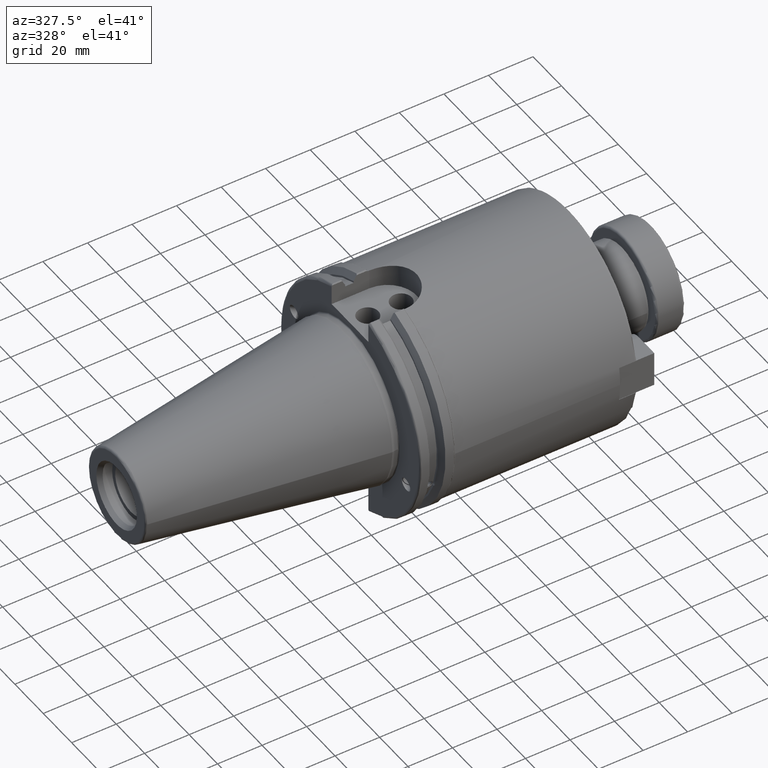
[diagram: clean part render]
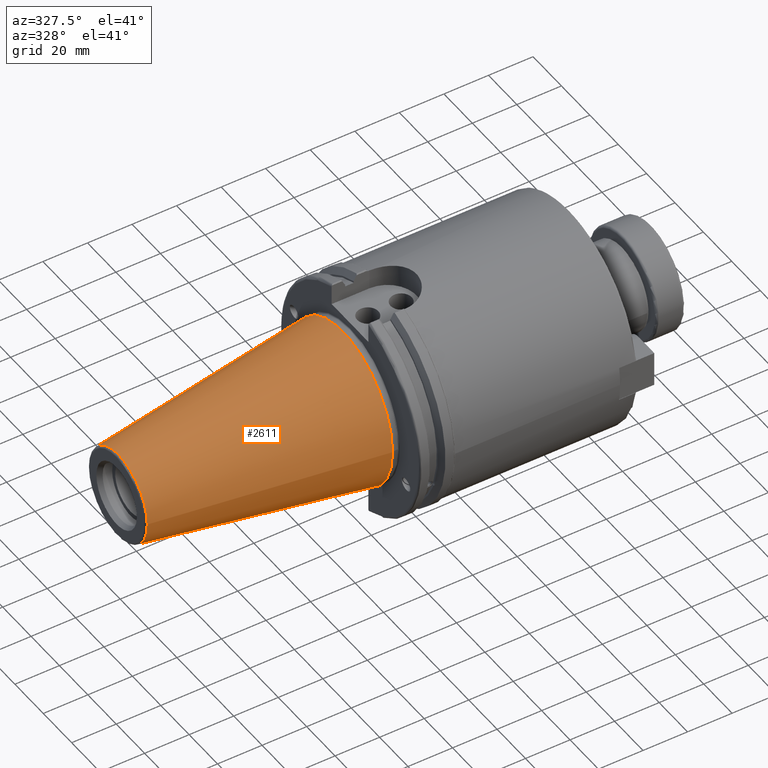
[diagram: same view with one face highlighted and labeled with its STEP entity id]
A machine part, auxiliary view. The second image highlights one B-rep face of the part: STEP entity #2611.
In plain terms, the highlighted conical surface has half-angle 8.297 deg.
Its self-contained STEP definition (entity closure, byte-faithful):
#129=CONICAL_SURFACE('',#2952,27.5166666666666,0.14481249823894);
#275=CIRCLE('',#2943,20.233121911427);
#276=CIRCLE('',#2944,20.233121911427);
#280=CIRCLE('',#2948,20.233121911427);
#283=CIRCLE('',#2953,34.925);
#284=CIRCLE('',#2954,34.925);
#425=FACE_OUTER_BOUND('',#583,.T.);
#583=EDGE_LOOP('',(#2164,#2165,#2166,#2167,#2168,#2169,#2170));
#747=LINE('',#5028,#897);
#897=VECTOR('',#3587,27.5166666666666);
#1199=VERTEX_POINT('',#5007);
#1200=VERTEX_POINT('',#5008);
#1201=VERTEX_POINT('',#5010);
#1206=VERTEX_POINT('',#5024);
#1207=VERTEX_POINT('',#5025);
#1549=EDGE_CURVE('',#1199,#1200,#275,.T.);
#1550=EDGE_CURVE('',#1200,#1201,#276,.T.);
#1554=EDGE_CURVE('',#1201,#1199,#280,.T.);
#1557=EDGE_CURVE('',#1206,#1207,#283,.T.);
#1558=EDGE_CURVE('',#1207,#1206,#284,.T.);
#1559=EDGE_CURVE('',#1207,#1200,#747,.T.);
#2164=ORIENTED_EDGE('',*,*,#1557,.F.);
#2165=ORIENTED_EDGE('',*,*,#1558,.F.);
#2166=ORIENTED_EDGE('',*,*,#1559,.T.);
#2167=ORIENTED_EDGE('',*,*,#1549,.F.);
#2168=ORIENTED_EDGE('',*,*,#1554,.F.);
#2169=ORIENTED_EDGE('',*,*,#1550,.F.);
#2170=ORIENTED_EDGE('',*,*,#1559,.F.);
#2611=ADVANCED_FACE('',(#425),#129,.T.);
#2943=AXIS2_PLACEMENT_3D('',#5009,#3563,#3564);
#2944=AXIS2_PLACEMENT_3D('',#5011,#3565,#3566);
#2948=AXIS2_PLACEMENT_3D('',#5017,#3573,#3574);
#2952=AXIS2_PLACEMENT_3D('',#5023,#3581,#3582);
#2953=AXIS2_PLACEMENT_3D('',#5026,#3583,#3584);
#2954=AXIS2_PLACEMENT_3D('',#5027,#3585,#3586);
#3563=DIRECTION('center_axis',(-1.,0.,0.));
#3564=DIRECTION('ref_axis',(0.,-1.,3.06161699786838E-17));
#3565=DIRECTION('center_axis',(-1.,0.,0.));
#3566=DIRECTION('ref_axis',(0.,-1.,3.06161699786838E-17));
#3573=DIRECTION('center_axis',(-1.,0.,0.));
#3574=DIRECTION('ref_axis',(0.,-1.,3.06161699786838E-17));
#3581=DIRECTION('center_axis',(1.,0.,0.));
#3582=DIRECTION('ref_axis',(0.,1.,0.));
#3583=DIRECTION('center_axis',(1.,0.,0.));
#3584=DIRECTION('ref_axis',(0.,0.,-1.));
#3585=DIRECTION('center_axis',(1.,0.,0.));
#3586=DIRECTION('ref_axis',(0.,0.,-1.));
#3587=DIRECTION('',(-0.989532981063281,0.144306893071729,1.76724974695192E-17));
#5007=CARTESIAN_POINT('',(-100.744306893072,20.233121911427,-6.19460699639681E-15));
#5008=CARTESIAN_POINT('',(-100.744306893072,-20.233121911427,-2.47784279855872E-15));
#5009=CARTESIAN_POINT('Origin',(-100.744306893072,0.,-3.09730349819841E-15));
#5010=CARTESIAN_POINT('',(-100.744306893072,-2.47784279855872E-15,20.233121911427));
#5011=CARTESIAN_POINT('Origin',(-100.744306893072,0.,-3.09730349819841E-15));
#5017=CARTESIAN_POINT('Origin',(-100.744306893072,0.,-3.09730349819841E-15));
#5023=CARTESIAN_POINT('Origin',(-50.8,0.,0.));
#5024=CARTESIAN_POINT('',(0.,34.925,0.));
#5025=CARTESIAN_POINT('',(-8.88178419700125E-15,-34.925,-4.27707894602213E-15));
#5026=CARTESIAN_POINT('Origin',(0.,0.,0.));
#5027=CARTESIAN_POINT('Origin',(0.,0.,0.));
#5028=CARTESIAN_POINT('',(-50.8,-27.5166666666666,-3.3698197756538E-15));